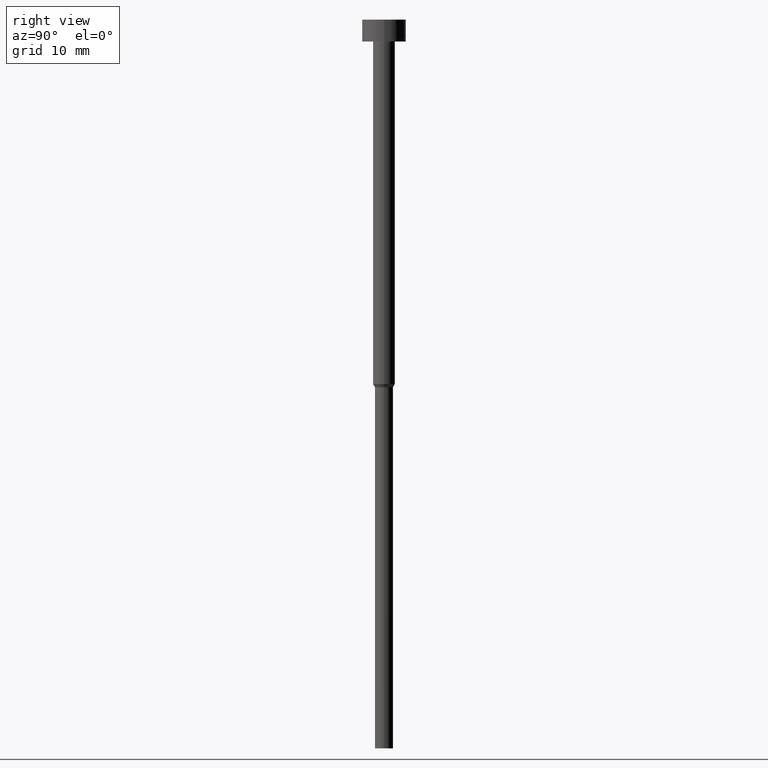
[diagram: clean part render]
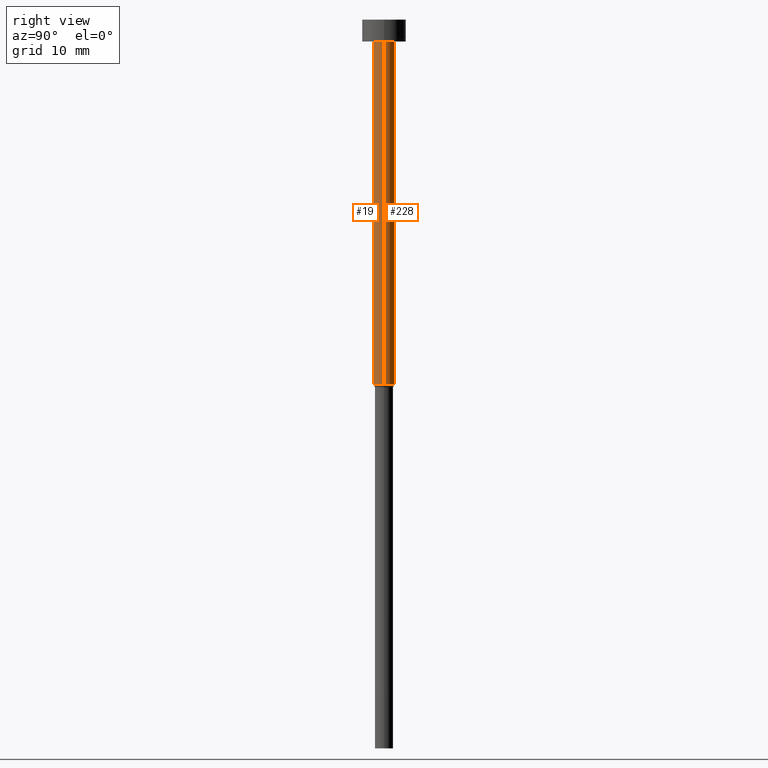
[diagram: same view with one multi-face feature highlighted, each face labeled with its STEP entity id]
A machine part, right view. The highlighted faces form ONE feature: a constant-radius fillet chain: 2 tangent blend faces with common blend radius 1.5 mm. The faces share edges in the B-rep.
Their STEP definitions:
[1] entity #228 (Cylinder):
#5 = EDGE_CURVE ( 'NONE', #72, #127, #252, .T. ) ;
#6 = DIRECTION ( 'NONE',  ( 1.000000000000000000, 0.000000000000000000, 0.000000000000000000 ) ) ;
#27 = DIRECTION ( 'NONE',  ( 1.000000000000000000, 0.000000000000000000, 0.000000000000000000 ) ) ;
#33 = CARTESIAN_POINT ( 'NONE',  ( 0.000000000000000000, 0.000000000000000000, 0.000000000000000000 ) ) ;
#37 = DIRECTION ( 'NONE',  ( -0.000000000000000000, -0.000000000000000000, 1.000000000000000000 ) ) ;
#50 = ORIENTED_EDGE ( 'NONE', *, *, #326, .F. ) ;
#51 = DIRECTION ( 'NONE',  ( -0.000000000000000000, -0.000000000000000000, 1.000000000000000000 ) ) ;
#61 = LINE ( 'NONE', #163, #233 ) ;
#71 = EDGE_LOOP ( 'NONE', ( #246, #342, #352, #50 ) ) ;
#72 = VERTEX_POINT ( 'NONE', #244 ) ;
#76 = CIRCLE ( 'NONE', #80, 1.500000000000000000 ) ;
#80 = AXIS2_PLACEMENT_3D ( 'NONE', #157, #51, #27 ) ;
#109 = AXIS2_PLACEMENT_3D ( 'NONE', #33, #218, #6 ) ;
#120 = CARTESIAN_POINT ( 'NONE',  ( 0.000000000000000000, 0.000000000000000000, -3.000000000000000888 ) ) ;
#121 = VECTOR ( 'NONE', #37, 1000.000000000000000 ) ;
#127 = VERTEX_POINT ( 'NONE', #337 ) ;
#128 = CARTESIAN_POINT ( 'NONE',  ( 1.500000000000000000, 0.000000000000000000, -50.00000000000000000 ) ) ;
#155 = VERTEX_POINT ( 'NONE', #222 ) ;
#157 = CARTESIAN_POINT ( 'NONE',  ( 0.000000000000000000, 0.000000000000000000, -50.00000000000000000 ) ) ;
#163 = CARTESIAN_POINT ( 'NONE',  ( 1.500000000000000000, 0.000000000000000000, 0.000000000000000000 ) ) ;
#182 = EDGE_CURVE ( 'NONE', #155, #127, #281, .T. ) ;
#185 = DIRECTION ( 'NONE',  ( -0.000000000000000000, -0.000000000000000000, 1.000000000000000000 ) ) ;
#190 = CYLINDRICAL_SURFACE ( 'NONE', #109, 1.500000000000000000 ) ;
#218 = DIRECTION ( 'NONE',  ( -0.000000000000000000, -0.000000000000000000, 1.000000000000000000 ) ) ;
#222 = CARTESIAN_POINT ( 'NONE',  ( -1.500000000000000000, 1.836970198721029934E-16, -50.00000000000000000 ) ) ;
#224 = AXIS2_PLACEMENT_3D ( 'NONE', #120, #225, #339 ) ;
#225 = DIRECTION ( 'NONE',  ( -0.000000000000000000, -0.000000000000000000, 1.000000000000000000 ) ) ;
#228 = ADVANCED_FACE ( 'NONE', ( #245 ), #190, .T. ) ;
#233 = VECTOR ( 'NONE', #185, 1000.000000000000000 ) ;
#239 = EDGE_CURVE ( 'NONE', #253, #155, #76, .T. ) ;
#244 = CARTESIAN_POINT ( 'NONE',  ( 1.500000000000000000, 0.000000000000000000, -3.000000000000000888 ) ) ;
#245 = FACE_OUTER_BOUND ( 'NONE', #71, .T. ) ;
#246 = ORIENTED_EDGE ( 'NONE', *, *, #239, .T. ) ;
#252 = CIRCLE ( 'NONE', #224, 1.500000000000000000 ) ;
#253 = VERTEX_POINT ( 'NONE', #128 ) ;
#281 = LINE ( 'NONE', #340, #121 ) ;
#326 = EDGE_CURVE ( 'NONE', #253, #72, #61, .T. ) ;
#337 = CARTESIAN_POINT ( 'NONE',  ( -1.500000000000000000, 1.836970198721029934E-16, -3.000000000000000888 ) ) ;
#339 = DIRECTION ( 'NONE',  ( 1.000000000000000000, 0.000000000000000000, 0.000000000000000000 ) ) ;
#340 = CARTESIAN_POINT ( 'NONE',  ( -1.500000000000000000, 1.836970198721029934E-16, 0.000000000000000000 ) ) ;
#342 = ORIENTED_EDGE ( 'NONE', *, *, #182, .T. ) ;
#352 = ORIENTED_EDGE ( 'NONE', *, *, #5, .F. ) ;
[2] entity #19 (Cylinder):
#19 = ADVANCED_FACE ( 'NONE', ( #90 ), #278, .T. ) ;
#35 = DIRECTION ( 'NONE',  ( 1.000000000000000000, 0.000000000000000000, 0.000000000000000000 ) ) ;
#36 = EDGE_CURVE ( 'NONE', #127, #72, #235, .T. ) ;
#37 = DIRECTION ( 'NONE',  ( -0.000000000000000000, -0.000000000000000000, 1.000000000000000000 ) ) ;
#48 = AXIS2_PLACEMENT_3D ( 'NONE', #137, #131, #35 ) ;
#53 = ORIENTED_EDGE ( 'NONE', *, *, #182, .F. ) ;
#61 = LINE ( 'NONE', #163, #233 ) ;
#64 = AXIS2_PLACEMENT_3D ( 'NONE', #65, #271, #249 ) ;
#65 = CARTESIAN_POINT ( 'NONE',  ( 0.000000000000000000, 0.000000000000000000, 0.000000000000000000 ) ) ;
#72 = VERTEX_POINT ( 'NONE', #244 ) ;
#75 = ORIENTED_EDGE ( 'NONE', *, *, #36, .F. ) ;
#90 = FACE_OUTER_BOUND ( 'NONE', #318, .T. ) ;
#106 = CIRCLE ( 'NONE', #48, 1.500000000000000000 ) ;
#121 = VECTOR ( 'NONE', #37, 1000.000000000000000 ) ;
#127 = VERTEX_POINT ( 'NONE', #337 ) ;
#128 = CARTESIAN_POINT ( 'NONE',  ( 1.500000000000000000, 0.000000000000000000, -50.00000000000000000 ) ) ;
#131 = DIRECTION ( 'NONE',  ( -0.000000000000000000, -0.000000000000000000, 1.000000000000000000 ) ) ;
#137 = CARTESIAN_POINT ( 'NONE',  ( 0.000000000000000000, 0.000000000000000000, -50.00000000000000000 ) ) ;
#155 = VERTEX_POINT ( 'NONE', #222 ) ;
#163 = CARTESIAN_POINT ( 'NONE',  ( 1.500000000000000000, 0.000000000000000000, 0.000000000000000000 ) ) ;
#171 = ORIENTED_EDGE ( 'NONE', *, *, #326, .T. ) ;
#172 = DIRECTION ( 'NONE',  ( 1.000000000000000000, 0.000000000000000000, 0.000000000000000000 ) ) ;
#182 = EDGE_CURVE ( 'NONE', #155, #127, #281, .T. ) ;
#185 = DIRECTION ( 'NONE',  ( -0.000000000000000000, -0.000000000000000000, 1.000000000000000000 ) ) ;
#199 = DIRECTION ( 'NONE',  ( -0.000000000000000000, -0.000000000000000000, 1.000000000000000000 ) ) ;
#222 = CARTESIAN_POINT ( 'NONE',  ( -1.500000000000000000, 1.836970198721029934E-16, -50.00000000000000000 ) ) ;
#233 = VECTOR ( 'NONE', #185, 1000.000000000000000 ) ;
#235 = CIRCLE ( 'NONE', #264, 1.500000000000000000 ) ;
#244 = CARTESIAN_POINT ( 'NONE',  ( 1.500000000000000000, 0.000000000000000000, -3.000000000000000888 ) ) ;
#249 = DIRECTION ( 'NONE',  ( 1.000000000000000000, 0.000000000000000000, 0.000000000000000000 ) ) ;
#253 = VERTEX_POINT ( 'NONE', #128 ) ;
#258 = CARTESIAN_POINT ( 'NONE',  ( 0.000000000000000000, 0.000000000000000000, -3.000000000000000888 ) ) ;
#264 = AXIS2_PLACEMENT_3D ( 'NONE', #258, #199, #172 ) ;
#271 = DIRECTION ( 'NONE',  ( -0.000000000000000000, -0.000000000000000000, 1.000000000000000000 ) ) ;
#278 = CYLINDRICAL_SURFACE ( 'NONE', #64, 1.500000000000000000 ) ;
#281 = LINE ( 'NONE', #340, #121 ) ;
#294 = ORIENTED_EDGE ( 'NONE', *, *, #317, .T. ) ;
#317 = EDGE_CURVE ( 'NONE', #155, #253, #106, .T. ) ;
#318 = EDGE_LOOP ( 'NONE', ( #53, #294, #171, #75 ) ) ;
#326 = EDGE_CURVE ( 'NONE', #253, #72, #61, .T. ) ;
#337 = CARTESIAN_POINT ( 'NONE',  ( -1.500000000000000000, 1.836970198721029934E-16, -3.000000000000000888 ) ) ;
#340 = CARTESIAN_POINT ( 'NONE',  ( -1.500000000000000000, 1.836970198721029934E-16, 0.000000000000000000 ) ) ;